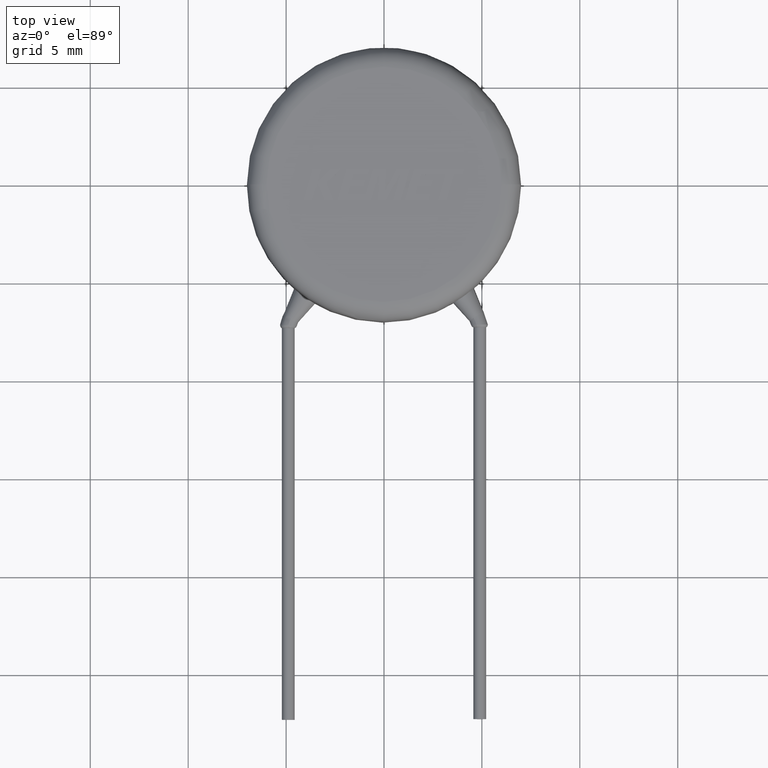
[diagram: clean part render]
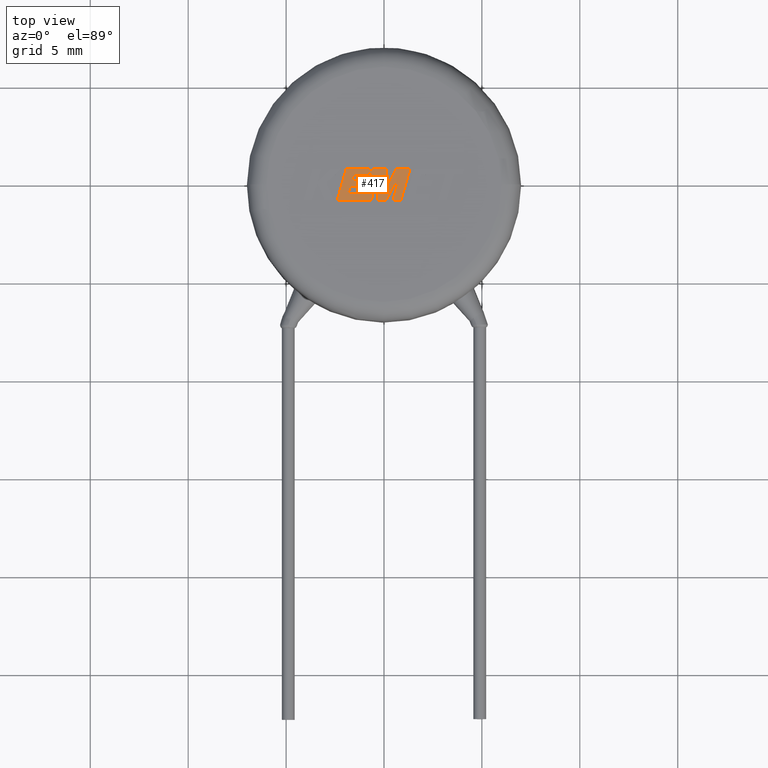
[diagram: same view with one face highlighted and labeled with its STEP entity id]
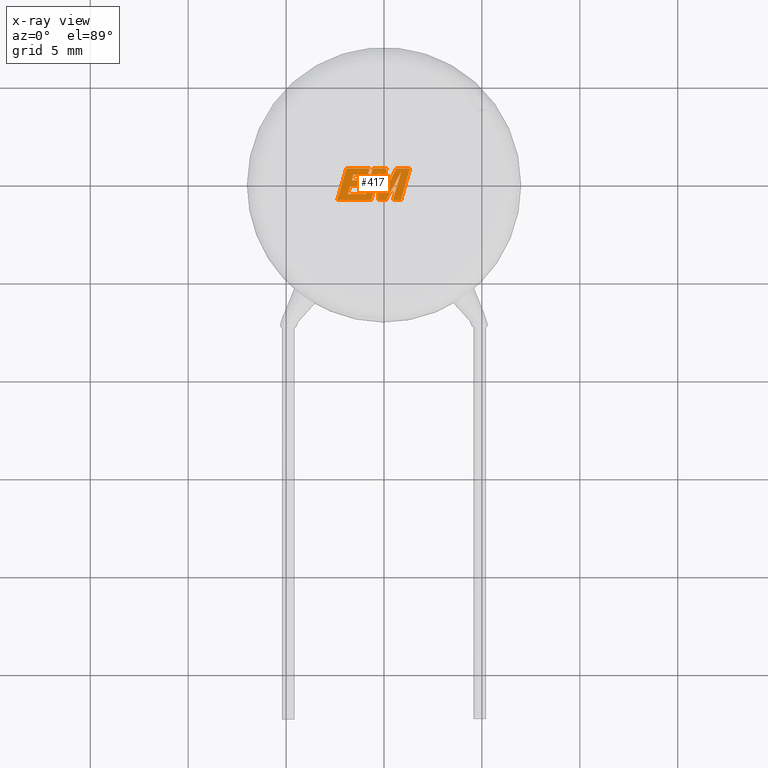
[diagram: x-ray of the same camera — body ghosted, the highlighted face saturated]
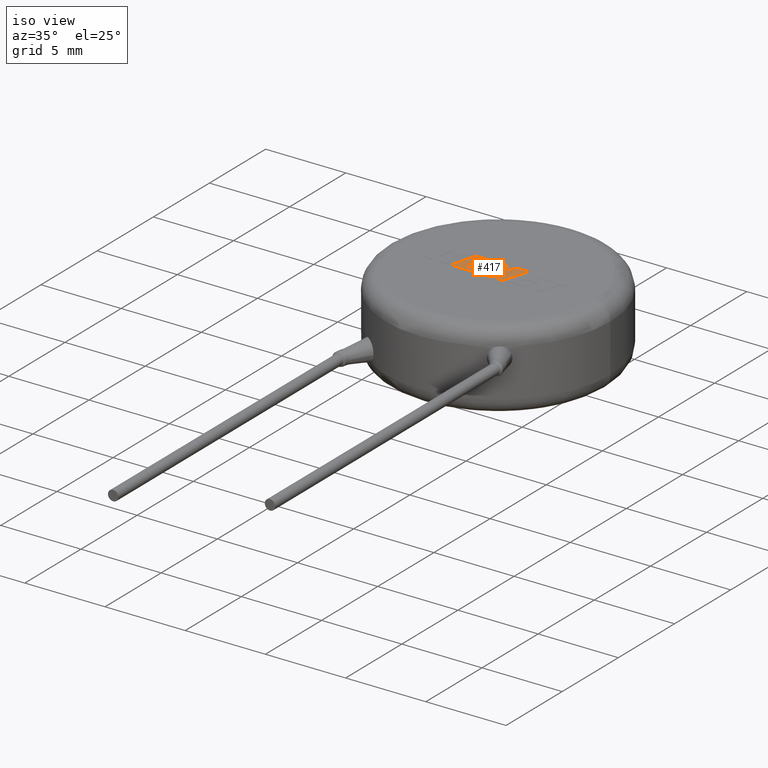
[diagram: same view with one face highlighted and labeled with its STEP entity id]
A machine part, top view. The second image highlights one B-rep face of the part: STEP entity #417.
The next image is the same camera in x-ray: the body ghosted, the highlighted face saturated — about 0% of this face is hidden behind the body in this view.
A second angle (iso view) of the same face is appended — the face is thin or edge-on in the first view.
In plain terms, the highlighted planar face has unit normal (0, 0, -1).
Its self-contained STEP definition (entity closure, byte-faithful):
#8 = EDGE_CURVE ( 'NONE', #2355, #1477, #3053, .T. ) ;
#131 = DIRECTION ( 'NONE',  ( -0.2760118818968563800, -0.9611542233438688000, 0.0000000000000000000 ) ) ;
#139 = VECTOR ( 'NONE', #3649, 1000.000000000000000 ) ;
#142 = LINE ( 'NONE', #1335, #3515 ) ;
#187 = EDGE_CURVE ( 'NONE', #1385, #2512, #2000, .T. ) ;
#207 = LINE ( 'NONE', #2835, #3207 ) ;
#213 = EDGE_CURVE ( 'NONE', #3561, #2824, #207, .T. ) ;
#255 = CARTESIAN_POINT ( 'NONE',  ( 0.1111097850306722700, -0.8100400000000505000, 5.004999999999999900 ) ) ;
#317 = CARTESIAN_POINT ( 'NONE',  ( -1.554659432392192300, 0.4958697484202254600, 5.004999999999999900 ) ) ;
#340 = VERTEX_POINT ( 'NONE', #3895 ) ;
#364 = CARTESIAN_POINT ( 'NONE',  ( -0.7325985123482697800, 0.8028809740081553900, 5.004999999999999900 ) ) ;
#394 = DIRECTION ( 'NONE',  ( -0.2762517575166125700, -0.9610853065513916800, 0.0000000000000000000 ) ) ;
#417 = ADVANCED_FACE ( 'NONE', ( #2838 ), #453, .F. ) ;
#438 = LINE ( 'NONE', #1029, #139 ) ;
#453 = PLANE ( 'NONE',  #2670 ) ;
#458 = DIRECTION ( 'NONE',  ( -0.05596501978068215600, -0.9984327301130245800, 0.0000000000000000000 ) ) ;
#514 = VERTEX_POINT ( 'NONE', #1171 ) ;
#637 = DIRECTION ( 'NONE',  ( -1.000000000000000000, -9.098923155897416500E-017, 0.0000000000000000000 ) ) ;
#650 = DIRECTION ( 'NONE',  ( -0.2765379750249957200, -0.9610029908221278100, 0.0000000000000000000 ) ) ;
#675 = ORIENTED_EDGE ( 'NONE', *, *, #1578, .T. ) ;
#680 = CARTESIAN_POINT ( 'NONE',  ( 0.1111097850306722700, -0.8100400000000505000, 5.004999999999999900 ) ) ;
#731 = ORIENTED_EDGE ( 'NONE', *, *, #213, .T. ) ;
#822 = VERTEX_POINT ( 'NONE', #2653 ) ;
#833 = CARTESIAN_POINT ( 'NONE',  ( -1.554659432392192300, 0.4958697484202254600, 5.004999999999999900 ) ) ;
#863 = CARTESIAN_POINT ( 'NONE',  ( 0.1151666265723650500, 0.8028809740081555000, 5.004999999999999900 ) ) ;
#906 = VECTOR ( 'NONE', #394, 1000.000000000000200 ) ;
#925 = DIRECTION ( 'NONE',  ( 1.000000000000000000, 2.645246203865972700E-016, 0.0000000000000000000 ) ) ;
#926 = VERTEX_POINT ( 'NONE', #2588 ) ;
#936 = ORIENTED_EDGE ( 'NONE', *, *, #1202, .T. ) ;
#990 = ORIENTED_EDGE ( 'NONE', *, *, #187, .T. ) ;
#998 = VERTEX_POINT ( 'NONE', #1344 ) ;
#1026 = EDGE_CURVE ( 'NONE', #3458, #3286, #142, .T. ) ;
#1029 = CARTESIAN_POINT ( 'NONE',  ( -0.9496706177018468000, 0.1958667022768675600, 5.004999999999999900 ) ) ;
#1032 = VERTEX_POINT ( 'NONE', #1671 ) ;
#1043 = ORIENTED_EDGE ( 'NONE', *, *, #4093, .T. ) ;
#1048 = ORIENTED_EDGE ( 'NONE', *, *, #1026, .T. ) ;
#1063 = DIRECTION ( 'NONE',  ( 0.2793947940878323000, 0.9601763114327585000, 0.0000000000000000000 ) ) ;
#1080 = VECTOR ( 'NONE', #2610, 1000.000000000000000 ) ;
#1171 = CARTESIAN_POINT ( 'NONE',  ( -0.2383919001103613800, 0.6259011478445739600, 5.004999999999999900 ) ) ;
#1172 = ORIENTED_EDGE ( 'NONE', *, *, #1251, .T. ) ;
#1195 = VECTOR ( 'NONE', #1462, 1000.000000000000000 ) ;
#1202 = EDGE_CURVE ( 'NONE', #2924, #3496, #3239, .T. ) ;
#1251 = EDGE_CURVE ( 'NONE', #2824, #926, #3563, .T. ) ;
#1288 = LINE ( 'NONE', #2118, #1195 ) ;
#1298 = DIRECTION ( 'NONE',  ( 0.2740217765954076100, 0.9617234872620593600, 0.0000000000000000000 ) ) ;
#1322 = CARTESIAN_POINT ( 'NONE',  ( -1.034837898475127000, -0.1023070570000794000, 5.004999999999999900 ) ) ;
#1334 = ORIENTED_EDGE ( 'NONE', *, *, #3061, .T. ) ;
#1335 = CARTESIAN_POINT ( 'NONE',  ( -0.3188805222471002800, -0.8100400000000507200, 5.004999999999999900 ) ) ;
#1344 = CARTESIAN_POINT ( 'NONE',  ( -1.841244438684286600, -0.5031808062937077600, 5.004999999999999900 ) ) ;
#1385 = VERTEX_POINT ( 'NONE', #4160 ) ;
#1386 = EDGE_CURVE ( 'NONE', #822, #3024, #2045, .T. ) ;
#1394 = VECTOR ( 'NONE', #1063, 1000.000000000000000 ) ;
#1397 = CARTESIAN_POINT ( 'NONE',  ( 0.8683266542630170300, -0.8100400000000505000, 5.004999999999999900 ) ) ;
#1441 = DIRECTION ( 'NONE',  ( 0.2763139702539116900, 0.9610674221107072800, 0.0000000000000000000 ) ) ;
#1452 = VECTOR ( 'NONE', #458, 1000.000000000000100 ) ;
#1457 = VECTOR ( 'NONE', #3440, 1000.000000000000200 ) ;
#1462 = DIRECTION ( 'NONE',  ( 1.000000000000000000, 2.242378016227903400E-016, 0.0000000000000000000 ) ) ;
#1476 = VECTOR ( 'NONE', #131, 1000.000000000000100 ) ;
#1477 = VERTEX_POINT ( 'NONE', #2321 ) ;
#1479 = ORIENTED_EDGE ( 'NONE', *, *, #2051, .T. ) ;
#1489 = CARTESIAN_POINT ( 'NONE',  ( -0.3188805222471002800, -0.8100400000000507200, 5.004999999999999900 ) ) ;
#1492 = VECTOR ( 'NONE', #2923, 1000.000000000000100 ) ;
#1554 = DIRECTION ( 'NONE',  ( 0.05375259206908306100, 0.9985542843760948400, 0.0000000000000000000 ) ) ;
#1578 = EDGE_CURVE ( 'NONE', #514, #3458, #3205, .T. ) ;
#1604 = LINE ( 'NONE', #3976, #4246 ) ;
#1608 = EDGE_CURVE ( 'NONE', #3024, #340, #1830, .T. ) ;
#1617 = CARTESIAN_POINT ( 'NONE',  ( 0.1151666265723650500, 0.8028809740081555000, 5.004999999999999900 ) ) ;
#1643 = VERTEX_POINT ( 'NONE', #2100 ) ;
#1654 = CARTESIAN_POINT ( 'NONE',  ( -0.5717193531623995200, 0.8028809740081553900, 5.004999999999999900 ) ) ;
#1671 = CARTESIAN_POINT ( 'NONE',  ( -0.6506925620043220200, -0.8100400000000507200, 5.004999999999999900 ) ) ;
#1691 = VERTEX_POINT ( 'NONE', #2963 ) ;
#1722 = EDGE_CURVE ( 'NONE', #340, #1643, #2646, .T. ) ;
#1724 = CARTESIAN_POINT ( 'NONE',  ( 0.05364520311529428300, 0.1477804534629296700, 5.004999999999998100 ) ) ;
#1773 = DIRECTION ( 'NONE',  ( -1.000000000000000000, 0.0000000000000000000, 0.0000000000000000000 ) ) ;
#1822 = DIRECTION ( 'NONE',  ( 0.4668459304955212000, 0.8843386665637611400, 0.0000000000000000000 ) ) ;
#1830 = LINE ( 'NONE', #863, #3009 ) ;
#1874 = EDGE_CURVE ( 'NONE', #3496, #2569, #1604, .T. ) ;
#1908 = CARTESIAN_POINT ( 'NONE',  ( 0.05313829806098593200, -0.3494104933153489600, 5.004999999999999900 ) ) ;
#1947 = LINE ( 'NONE', #255, #2303 ) ;
#1982 = LINE ( 'NONE', #3618, #2686 ) ;
#2000 = LINE ( 'NONE', #2206, #3103 ) ;
#2015 = ORIENTED_EDGE ( 'NONE', *, *, #1386, .T. ) ;
#2045 = LINE ( 'NONE', #1908, #3412 ) ;
#2051 = EDGE_CURVE ( 'NONE', #1691, #2355, #2583, .T. ) ;
#2070 = LINE ( 'NONE', #3558, #1080 ) ;
#2082 = ORIENTED_EDGE ( 'NONE', *, *, #2127, .T. ) ;
#2100 = CARTESIAN_POINT ( 'NONE',  ( -0.9471302139613339000, -0.5031808062937077600, 5.004999999999999900 ) ) ;
#2118 = CARTESIAN_POINT ( 'NONE',  ( -2.388304202464826000, -0.8100400000000511600, 5.004999999999999900 ) ) ;
#2121 = ORIENTED_EDGE ( 'NONE', *, *, #2337, .T. ) ;
#2127 = EDGE_CURVE ( 'NONE', #1032, #514, #2692, .T. ) ;
#2151 = DIRECTION ( 'NONE',  ( 1.000000000000000000, 0.0000000000000000000, 0.0000000000000000000 ) ) ;
#2166 = ORIENTED_EDGE ( 'NONE', *, *, #1608, .T. ) ;
#2206 = CARTESIAN_POINT ( 'NONE',  ( 0.4584585025193474400, -0.8100400000000505000, 5.004999999999999900 ) ) ;
#2216 = ORIENTED_EDGE ( 'NONE', *, *, #2763, .T. ) ;
#2224 = DIRECTION ( 'NONE',  ( -1.000000000000000000, -3.156862141527944000E-016, 0.0000000000000000000 ) ) ;
#2232 = EDGE_CURVE ( 'NONE', #2992, #822, #4023, .T. ) ;
#2303 = VECTOR ( 'NONE', #1822, 1000.000000000000100 ) ;
#2318 = EDGE_LOOP ( 'NONE', ( #1334, #3717, #2015, #2166, #4182, #2121, #3942, #731, #1172, #3504, #1479, #3397, #2216, #936, #2614, #4099, #2082, #675, #1048, #3495, #2989, #990, #1043 ) ) ;
#2321 = CARTESIAN_POINT ( 'NONE',  ( -0.8197961544161502800, 0.4958697484202254600, 5.004999999999999900 ) ) ;
#2337 = EDGE_CURVE ( 'NONE', #1643, #998, #1982, .T. ) ;
#2355 = VERTEX_POINT ( 'NONE', #317 ) ;
#2363 = LINE ( 'NONE', #3382, #1476 ) ;
#2395 = EDGE_CURVE ( 'NONE', #2569, #1032, #1288, .T. ) ;
#2409 = CARTESIAN_POINT ( 'NONE',  ( -1.641955159546585600, 0.1958667022768675600, 5.004999999999999900 ) ) ;
#2421 = LINE ( 'NONE', #3587, #3950 ) ;
#2428 = CARTESIAN_POINT ( 'NONE',  ( -0.2383919001103613800, 0.6259011478445739600, 5.004999999999999900 ) ) ;
#2472 = VERTEX_POINT ( 'NONE', #3055 ) ;
#2512 = VERTEX_POINT ( 'NONE', #3212 ) ;
#2548 = DIRECTION ( 'NONE',  ( 1.000000000000000000, 0.0000000000000000000, 0.0000000000000000000 ) ) ;
#2569 = VERTEX_POINT ( 'NONE', #3715 ) ;
#2583 = LINE ( 'NONE', #2409, #1394 ) ;
#2588 = CARTESIAN_POINT ( 'NONE',  ( -0.9496706177018468000, 0.1958667022768675600, 5.004999999999999900 ) ) ;
#2599 = EDGE_CURVE ( 'NONE', #926, #1691, #438, .T. ) ;
#2610 = DIRECTION ( 'NONE',  ( -1.000000000000000000, -3.065245663218813700E-016, 0.0000000000000000000 ) ) ;
#2614 = ORIENTED_EDGE ( 'NONE', *, *, #1874, .T. ) ;
#2646 = LINE ( 'NONE', #1654, #906 ) ;
#2653 = CARTESIAN_POINT ( 'NONE',  ( 0.05313829806098593200, -0.3494104933153489600, 5.004999999999999900 ) ) ;
#2667 = DIRECTION ( 'NONE',  ( 1.000000000000000000, 2.521457237837486500E-016, 0.0000000000000000000 ) ) ;
#2670 = AXIS2_PLACEMENT_3D ( 'NONE', #1724, #2739, #1773 ) ;
#2686 = VECTOR ( 'NONE', #2921, 1000.000000000000000 ) ;
#2692 = LINE ( 'NONE', #3011, #3679 ) ;
#2739 = DIRECTION ( 'NONE',  ( 0.0000000000000000000, 0.0000000000000000000, -1.000000000000000000 ) ) ;
#2763 = EDGE_CURVE ( 'NONE', #1477, #2924, #3685, .T. ) ;
#2809 = DIRECTION ( 'NONE',  ( -0.4443210308329058100, -0.8958676361827030400, 0.0000000000000000000 ) ) ;
#2810 = CARTESIAN_POINT ( 'NONE',  ( -0.8197961544161502800, 0.4958697484202254600, 5.004999999999999900 ) ) ;
#2824 = VERTEX_POINT ( 'NONE', #3794 ) ;
#2835 = CARTESIAN_POINT ( 'NONE',  ( -1.727024355233241800, -0.1023070570000794000, 5.004999999999999900 ) ) ;
#2838 = FACE_OUTER_BOUND ( 'NONE', #2318, .T. ) ;
#2921 = DIRECTION ( 'NONE',  ( -1.000000000000000000, 0.0000000000000000000, 0.0000000000000000000 ) ) ;
#2923 = DIRECTION ( 'NONE',  ( 0.2746459304916913900, 0.9615454294334474500, 0.0000000000000000000 ) ) ;
#2924 = VERTEX_POINT ( 'NONE', #3628 ) ;
#2963 = CARTESIAN_POINT ( 'NONE',  ( -1.641955159546585600, 0.1958667022768675600, 5.004999999999999900 ) ) ;
#2989 = ORIENTED_EDGE ( 'NONE', *, *, #3431, .T. ) ;
#2992 = VERTEX_POINT ( 'NONE', #4253 ) ;
#3009 = VECTOR ( 'NONE', #2224, 1000.000000000000000 ) ;
#3011 = CARTESIAN_POINT ( 'NONE',  ( -0.6506925620043220200, -0.8100400000000507200, 5.004999999999999900 ) ) ;
#3012 = VECTOR ( 'NONE', #1441, 1000.000000000000100 ) ;
#3024 = VERTEX_POINT ( 'NONE', #1617 ) ;
#3042 = EDGE_CURVE ( 'NONE', #998, #3561, #2421, .T. ) ;
#3053 = LINE ( 'NONE', #833, #3377 ) ;
#3055 = CARTESIAN_POINT ( 'NONE',  ( 0.8727993342158464300, 0.6328161464528132600, 5.004999999999999900 ) ) ;
#3061 = EDGE_CURVE ( 'NONE', #3244, #2992, #2070, .T. ) ;
#3103 = VECTOR ( 'NONE', #925, 1000.000000000000000 ) ;
#3205 = LINE ( 'NONE', #2428, #1452 ) ;
#3207 = VECTOR ( 'NONE', #2548, 1000.000000000000000 ) ;
#3212 = CARTESIAN_POINT ( 'NONE',  ( 0.8683266542630170300, -0.8100400000000505000, 5.004999999999999900 ) ) ;
#3239 = LINE ( 'NONE', #364, #3456 ) ;
#3244 = VERTEX_POINT ( 'NONE', #3988 ) ;
#3286 = VERTEX_POINT ( 'NONE', #680 ) ;
#3316 = DIRECTION ( 'NONE',  ( 0.2759782365590801000, 0.9611638845408936300, 0.0000000000000000000 ) ) ;
#3371 = CARTESIAN_POINT ( 'NONE',  ( -1.727024355233241800, -0.1023070570000794000, 5.004999999999999900 ) ) ;
#3377 = VECTOR ( 'NONE', #2151, 1000.000000000000000 ) ;
#3382 = CARTESIAN_POINT ( 'NONE',  ( 0.8727993342158464300, 0.6328161464528132600, 5.004999999999999900 ) ) ;
#3397 = ORIENTED_EDGE ( 'NONE', *, *, #8, .T. ) ;
#3412 = VECTOR ( 'NONE', #1554, 999.9999999999998900 ) ;
#3431 = EDGE_CURVE ( 'NONE', #2472, #1385, #2363, .T. ) ;
#3440 = DIRECTION ( 'NONE',  ( 0.2732148821745866700, 0.9619530280415601300, 0.0000000000000000000 ) ) ;
#3456 = VECTOR ( 'NONE', #637, 1000.000000000000000 ) ;
#3458 = VERTEX_POINT ( 'NONE', #1489 ) ;
#3495 = ORIENTED_EDGE ( 'NONE', *, *, #3927, .T. ) ;
#3496 = VERTEX_POINT ( 'NONE', #4049 ) ;
#3504 = ORIENTED_EDGE ( 'NONE', *, *, #2599, .T. ) ;
#3515 = VECTOR ( 'NONE', #2667, 1000.000000000000000 ) ;
#3558 = CARTESIAN_POINT ( 'NONE',  ( 1.332053327106866400, 0.8028809740081557200, 5.004999999999999900 ) ) ;
#3561 = VERTEX_POINT ( 'NONE', #3371 ) ;
#3563 = LINE ( 'NONE', #1322, #1492 ) ;
#3584 = LINE ( 'NONE', #1397, #3012 ) ;
#3587 = CARTESIAN_POINT ( 'NONE',  ( -1.841244438684286600, -0.5031808062937077600, 5.004999999999999900 ) ) ;
#3618 = CARTESIAN_POINT ( 'NONE',  ( -0.9471302139613339000, -0.5031808062937077600, 5.004999999999999900 ) ) ;
#3628 = CARTESIAN_POINT ( 'NONE',  ( -0.7325985123482697800, 0.8028809740081553900, 5.004999999999999900 ) ) ;
#3649 = DIRECTION ( 'NONE',  ( -1.000000000000000000, 0.0000000000000000000, 0.0000000000000000000 ) ) ;
#3679 = VECTOR ( 'NONE', #3316, 1000.000000000000200 ) ;
#3685 = LINE ( 'NONE', #2810, #1457 ) ;
#3699 = CARTESIAN_POINT ( 'NONE',  ( 0.6246371578286207300, 0.8028809740081555000, 5.004999999999999900 ) ) ;
#3715 = CARTESIAN_POINT ( 'NONE',  ( -2.388304202464826000, -0.8100400000000511600, 5.004999999999999900 ) ) ;
#3717 = ORIENTED_EDGE ( 'NONE', *, *, #2232, .T. ) ;
#3794 = CARTESIAN_POINT ( 'NONE',  ( -1.034837898475127000, -0.1023070570000794000, 5.004999999999999900 ) ) ;
#3895 = CARTESIAN_POINT ( 'NONE',  ( -0.5717193531623995200, 0.8028809740081553900, 5.004999999999999900 ) ) ;
#3927 = EDGE_CURVE ( 'NONE', #3286, #2472, #1947, .T. ) ;
#3942 = ORIENTED_EDGE ( 'NONE', *, *, #3042, .T. ) ;
#3950 = VECTOR ( 'NONE', #1298, 1000.000000000000100 ) ;
#3976 = CARTESIAN_POINT ( 'NONE',  ( -1.924170475215969200, 0.8028809740081551700, 5.004999999999999900 ) ) ;
#3988 = CARTESIAN_POINT ( 'NONE',  ( 1.332053327106866400, 0.8028809740081557200, 5.004999999999999900 ) ) ;
#4023 = LINE ( 'NONE', #3699, #4194 ) ;
#4049 = CARTESIAN_POINT ( 'NONE',  ( -1.924170475215969200, 0.8028809740081551700, 5.004999999999999900 ) ) ;
#4093 = EDGE_CURVE ( 'NONE', #2512, #3244, #3584, .T. ) ;
#4099 = ORIENTED_EDGE ( 'NONE', *, *, #2395, .T. ) ;
#4160 = CARTESIAN_POINT ( 'NONE',  ( 0.4584585025193474400, -0.8100400000000505000, 5.004999999999999900 ) ) ;
#4182 = ORIENTED_EDGE ( 'NONE', *, *, #1722, .T. ) ;
#4194 = VECTOR ( 'NONE', #2809, 1000.000000000000000 ) ;
#4246 = VECTOR ( 'NONE', #650, 1000.000000000000100 ) ;
#4253 = CARTESIAN_POINT ( 'NONE',  ( 0.6246371578286207300, 0.8028809740081555000, 5.004999999999999900 ) ) ;